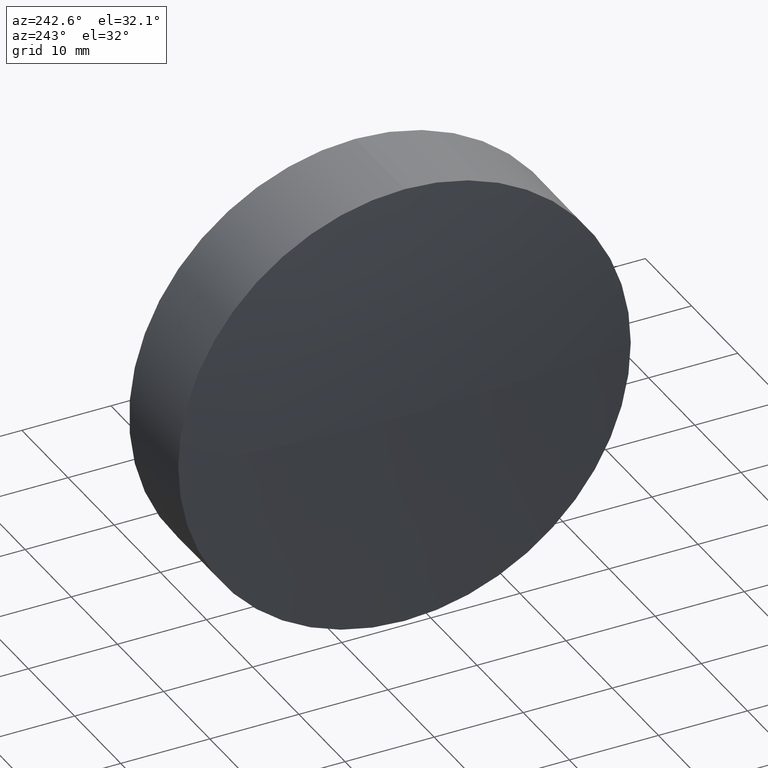
[diagram: clean part render]
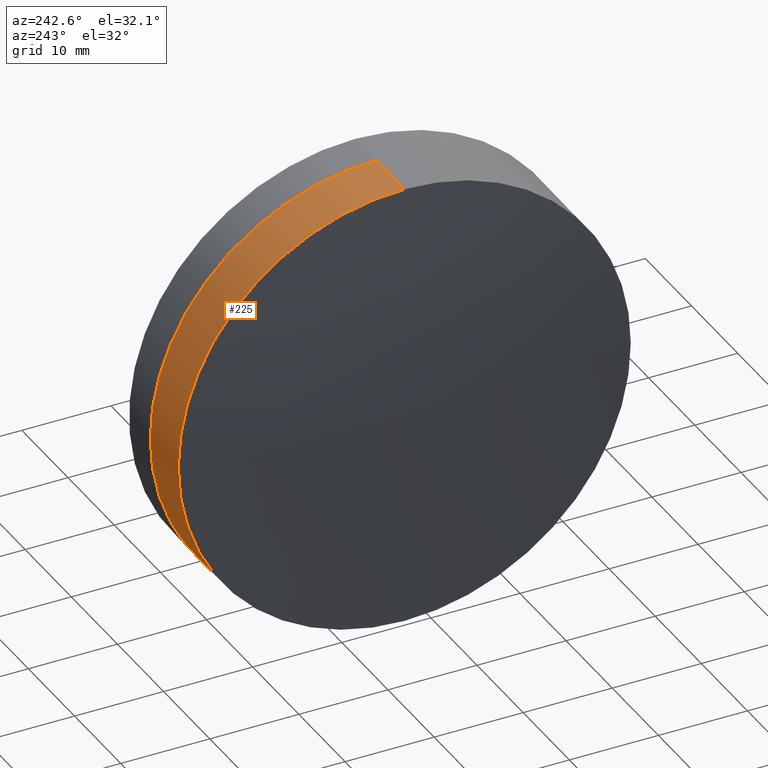
[diagram: same view with one face highlighted and labeled with its STEP entity id]
A machine part, auxiliary view. The second image highlights one B-rep face of the part: STEP entity #225.
In plain terms, the highlighted cylindrical surface (partial cylindrical patch) has radius 25.4 mm, axis along (-1, -0, -0).
Its self-contained STEP definition (entity closure, byte-faithful):
#9 = DIRECTION ( 'NONE',  ( -1.000000000000000000, -0.000000000000000000, -0.000000000000000000 ) ) ;
#24 = DIRECTION ( 'NONE',  ( 0.000000000000000000, 0.000000000000000000, 1.000000000000000000 ) ) ;
#35 = CARTESIAN_POINT ( 'NONE',  ( -24.78204361462951866, 13.39555463349441311, 25.39999999999999858 ) ) ;
#39 = EDGE_CURVE ( 'NONE', #385, #207, #42, .T. ) ;
#42 = CIRCLE ( 'NONE', #65, 25.39999999999999858 ) ;
#50 = EDGE_CURVE ( 'NONE', #120, #385, #287, .T. ) ;
#54 = CARTESIAN_POINT ( 'NONE',  ( -24.78204361462951866, 13.39555463349441666, -25.39999999999999858 ) ) ;
#55 = ORIENTED_EDGE ( 'NONE', *, *, #254, .T. ) ;
#58 = CIRCLE ( 'NONE', #281, 25.39999999999999858 ) ;
#63 = DIRECTION ( 'NONE',  ( 0.000000000000000000, 0.000000000000000000, 1.000000000000000000 ) ) ;
#65 = AXIS2_PLACEMENT_3D ( 'NONE', #280, #102, #279 ) ;
#88 = DIRECTION ( 'NONE',  ( 0.000000000000000000, 0.000000000000000000, 1.000000000000000000 ) ) ;
#100 = DIRECTION ( 'NONE',  ( -1.000000000000000000, -0.000000000000000000, -0.000000000000000000 ) ) ;
#102 = DIRECTION ( 'NONE',  ( -1.000000000000000000, -0.000000000000000000, -0.000000000000000000 ) ) ;
#103 = AXIS2_PLACEMENT_3D ( 'NONE', #335, #298, #24 ) ;
#105 = LINE ( 'NONE', #226, #260 ) ;
#111 = EDGE_CURVE ( 'NONE', #118, #336, #58, .T. ) ;
#118 = VERTEX_POINT ( 'NONE', #35 ) ;
#120 = VERTEX_POINT ( 'NONE', #165 ) ;
#148 = EDGE_CURVE ( 'NONE', #236, #207, #166, .T. ) ;
#165 = CARTESIAN_POINT ( 'NONE',  ( -30.84311918241391837, 13.39555463349441311, 25.39999999999999858 ) ) ;
#166 = LINE ( 'NONE', #196, #360 ) ;
#173 = EDGE_CURVE ( 'NONE', #118, #120, #105, .T. ) ;
#175 = ORIENTED_EDGE ( 'NONE', *, *, #173, .F. ) ;
#180 = DIRECTION ( 'NONE',  ( -1.000000000000000000, -0.000000000000000000, -0.000000000000000000 ) ) ;
#182 = ORIENTED_EDGE ( 'NONE', *, *, #111, .T. ) ;
#196 = CARTESIAN_POINT ( 'NONE',  ( -32.60229064574473057, 13.39555463349441666, -25.39999999999999858 ) ) ;
#205 = CARTESIAN_POINT ( 'NONE',  ( -24.78204361462953287, 38.79555463349433353, 0.000000000000000000 ) ) ;
#207 = VERTEX_POINT ( 'NONE', #243 ) ;
#225 = ADVANCED_FACE ( 'NONE', ( #315 ), #367, .T. ) ;
#226 = CARTESIAN_POINT ( 'NONE',  ( -32.60229064574473057, 13.39555463349441311, 25.39999999999999858 ) ) ;
#236 = VERTEX_POINT ( 'NONE', #54 ) ;
#243 = CARTESIAN_POINT ( 'NONE',  ( -30.84311918241391837, 13.39555463349441666, -25.39999999999999858 ) ) ;
#254 = EDGE_CURVE ( 'NONE', #336, #236, #328, .T. ) ;
#257 = ORIENTED_EDGE ( 'NONE', *, *, #148, .T. ) ;
#260 = VECTOR ( 'NONE', #363, 1000.000000000000000 ) ;
#273 = ORIENTED_EDGE ( 'NONE', *, *, #50, .F. ) ;
#276 = CARTESIAN_POINT ( 'NONE',  ( -24.78204361462951866, 13.39555463349441311, 0.000000000000000000 ) ) ;
#279 = DIRECTION ( 'NONE',  ( 0.000000000000000000, 0.000000000000000000, 1.000000000000000000 ) ) ;
#280 = CARTESIAN_POINT ( 'NONE',  ( -30.84311918241391837, 13.39555463349441311, 0.000000000000000000 ) ) ;
#281 = AXIS2_PLACEMENT_3D ( 'NONE', #276, #349, #63 ) ;
#287 = CIRCLE ( 'NONE', #379, 25.39999999999999858 ) ;
#298 = DIRECTION ( 'NONE',  ( -1.000000000000000000, -0.000000000000000000, -0.000000000000000000 ) ) ;
#315 = FACE_OUTER_BOUND ( 'NONE', #350, .T. ) ;
#328 = CIRCLE ( 'NONE', #103, 25.39999999999999858 ) ;
#335 = CARTESIAN_POINT ( 'NONE',  ( -24.78204361462951866, 13.39555463349441311, 0.000000000000000000 ) ) ;
#336 = VERTEX_POINT ( 'NONE', #205 ) ;
#338 = CARTESIAN_POINT ( 'NONE',  ( -32.60229064574473057, 13.39555463349441311, 0.000000000000000000 ) ) ;
#349 = DIRECTION ( 'NONE',  ( -1.000000000000000000, -0.000000000000000000, -0.000000000000000000 ) ) ;
#350 = EDGE_LOOP ( 'NONE', ( #55, #257, #396, #273, #175, #182 ) ) ;
#353 = DIRECTION ( 'NONE',  ( 0.000000000000000000, 0.000000000000000000, 1.000000000000000000 ) ) ;
#360 = VECTOR ( 'NONE', #9, 1000.000000000000000 ) ;
#363 = DIRECTION ( 'NONE',  ( -1.000000000000000000, -0.000000000000000000, -0.000000000000000000 ) ) ;
#367 = CYLINDRICAL_SURFACE ( 'NONE', #380, 25.39999999999999858 ) ;
#378 = CARTESIAN_POINT ( 'NONE',  ( -30.84311918241391837, 13.39555463349441311, 0.000000000000000000 ) ) ;
#379 = AXIS2_PLACEMENT_3D ( 'NONE', #378, #100, #353 ) ;
#380 = AXIS2_PLACEMENT_3D ( 'NONE', #338, #180, #88 ) ;
#385 = VERTEX_POINT ( 'NONE', #401 ) ;
#396 = ORIENTED_EDGE ( 'NONE', *, *, #39, .F. ) ;
#401 = CARTESIAN_POINT ( 'NONE',  ( -30.84311918241391837, 38.79555463349440458, 0.000000000000000000 ) ) ;